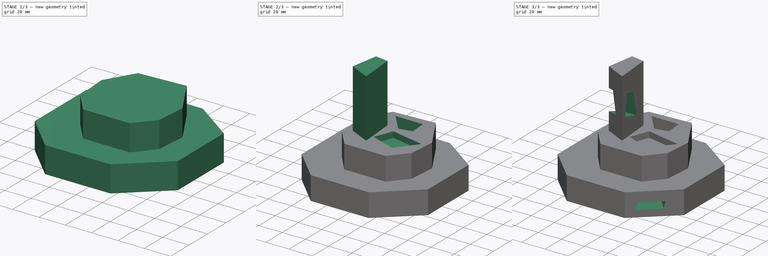
[diagram: build sequence overview — one tinted view per stage of 3, left to right]
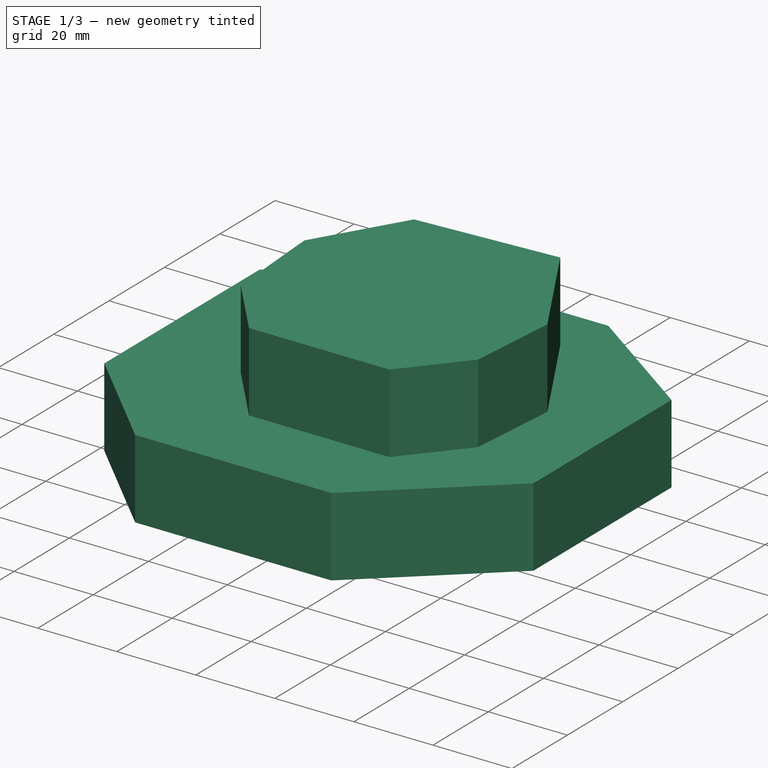
[diagram: stage 1 of 3 — iso view after this stage's code; geometry added in this stage tinted green]
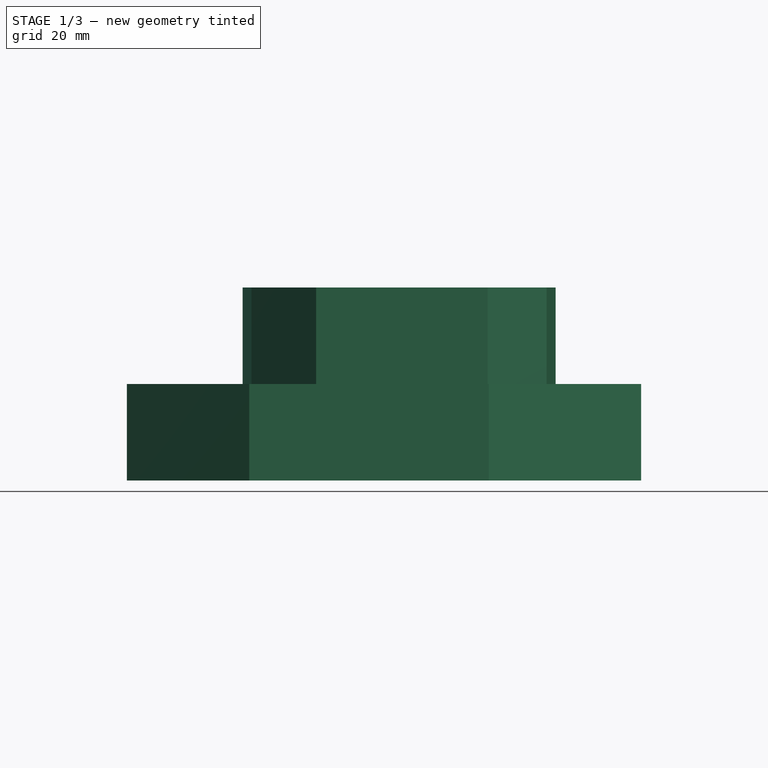
[diagram: stage 1 of 3 — front view after this stage's code; geometry added in this stage tinted green]
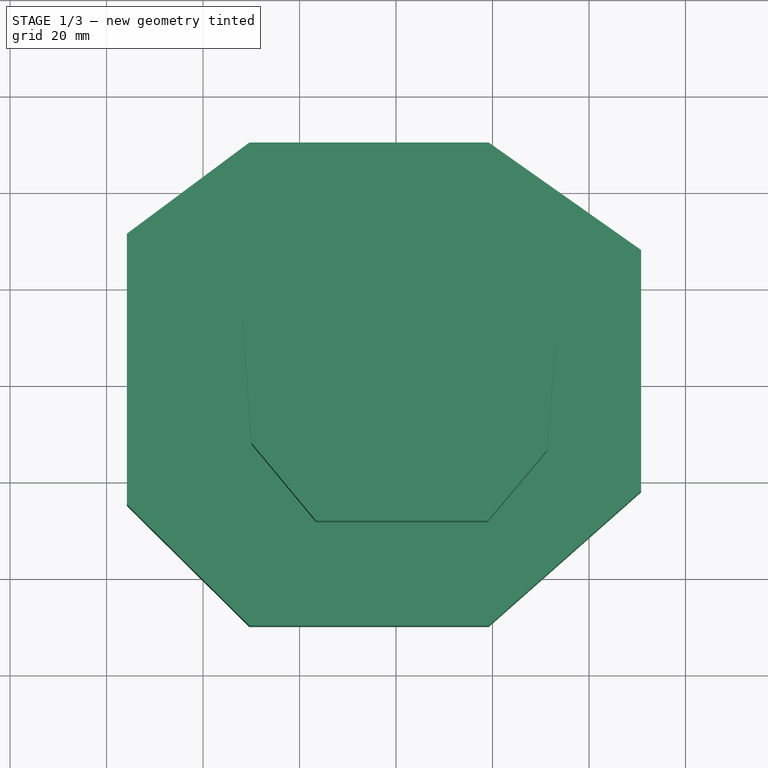
[diagram: stage 1 of 3 — top view after this stage's code; geometry added in this stage tinted green]
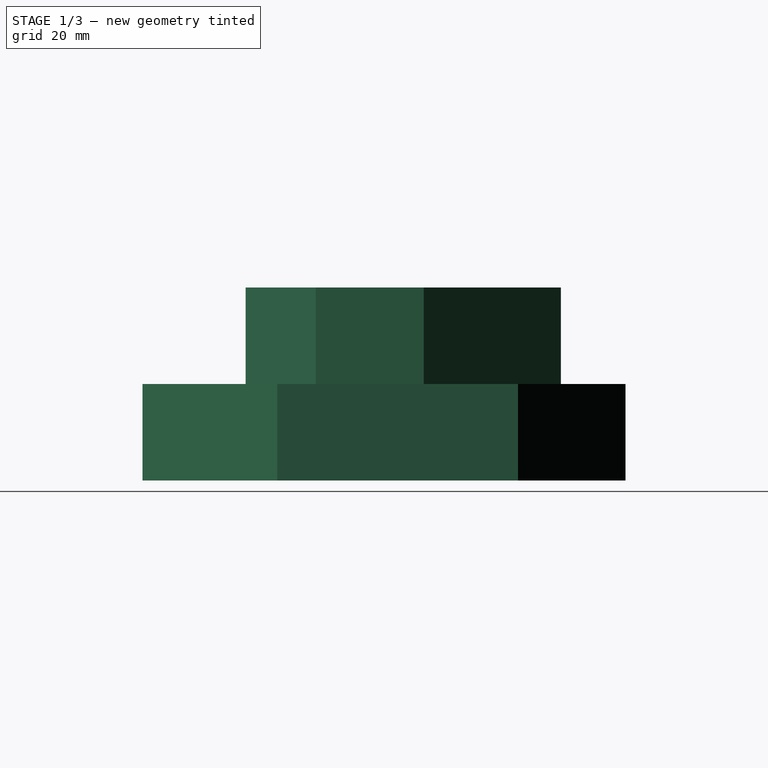
[diagram: stage 1 of 3 — right view after this stage's code; geometry added in this stage tinted green]
FCSTD DOCUMENT  (FreeCAD 0.21R33694 (Git))
Label: OJT1_T017_Tutorial
License: All rights reserved
LicenseURL: https://en.wikipedia.org/wiki/All_rights_reserved
objects: Sketcher::SketchObject×7, PartDesign::Pocket×4, PartDesign::Pad×3, PartDesign::Body×1
note: 22 computed .brp shape members not serialized (recipe doc carries the construction recipe); baked Part::Feature solids carry a one-line shape summary decoded from their .brp

FEATURE [Sketcher::SketchObject] Sketch
  FullyConstrained = false
  MapMode = 5
  Support = -> [XY_Plane]
  sketch-geometry (8):
    g0: LineSegment StartX=-30.4135 StartY=30.1897 StartZ=0 EndX=19.22 EndY=30.1897 EndZ=0
    g1: LineSegment StartX=19.22 StartY=30.1897 StartZ=0 EndX=50.8049 EndY=7.91106 EndZ=0
    g2: LineSegment StartX=50.8049 StartY=7.91106 StartZ=0 EndX=50.8049 EndY=-42.0044 EndZ=0
    g3: LineSegment StartX=50.8049 StartY=-42.0044 StartZ=0 EndX=19.22 EndY=-69.9233 EndZ=0
    g4: LineSegment StartX=19.22 StartY=-69.9233 StartZ=0 EndX=-30.4135 EndY=-69.9233 EndZ=0
    g5: LineSegment StartX=-30.4135 StartY=-69.9233 StartZ=0 EndX=-55.7943 EndY=-44.8245 EndZ=0
    g6: LineSegment StartX=-55.7943 StartY=-44.8245 StartZ=0 EndX=-55.7943 EndY=11.2952 EndZ=0
    g7: LineSegment StartX=-55.7943 StartY=11.2952 StartZ=0 EndX=-30.4135 EndY=30.1897 EndZ=0
  constraints (12):
    c: Horizontal(g0)
    c: Coincident(g0,g1)
    c: Coincident(g1,g2)
    c: Vertical(g2)
    c: Coincident(g2,g3)
    c: Coincident(g3,g4)
    c: Horizontal(g4)
    c: Coincident(g4,g5)
    c: Coincident(g5,g6)
    c: Vertical(g6)
    c: Coincident(g6,g7)
    c: Coincident(g7,g0)
FEATURE [PartDesign::Pad] Pad
  Direction = (0,0,1)
  Length = 20
  Length2 = 10
  Profile = -> Sketch
  ReferenceAxis = -> Sketch [N_Axis]
  Type = 0
FEATURE [Sketcher::SketchObject] Sketch001
  FullyConstrained = false
  MapMode = 5
  Placement = pos=(0,0,20) rot=(0,0,1;0rad)
  Support = -> [Pad]
  sketch-geometry (8):
    g0: LineSegment StartX=-19.1113 StartY=14.7062 StartZ=0 EndX=16.4456 EndY=16.7842 EndZ=0
    g1: LineSegment StartX=16.4456 StartY=16.7842 StartZ=0 EndX=33.0697 EndY=-11.6152 EndZ=0
    g2: LineSegment StartX=33.0697 StartY=-11.6152 StartZ=0 EndX=31.2226 EndY=-34.0114 EndZ=0
    g3: LineSegment StartX=31.2226 StartY=-34.0114 StartZ=0 EndX=18.9854 EndY=-48.5574 EndZ=0
    g4: LineSegment StartX=18.9854 StartY=-48.5574 StartZ=0 EndX=-16.5715 EndY=-48.5574 EndZ=0
    g5: LineSegment StartX=-16.5715 StartY=-48.5574 StartZ=0 EndX=-29.963 EndY=-32.3952 EndZ=0
    g6: LineSegment StartX=-29.963 StartY=-32.3952 StartZ=0 EndX=-31.8101 EndY=-6.76649 EndZ=0
    g7: LineSegment StartX=-31.8101 StartY=-6.76649 StartZ=0 EndX=-19.1113 EndY=14.7062 EndZ=0
  constraints (9):
    c: Coincident(g0,g1)
    c: Coincident(g1,g2)
    c: Coincident(g2,g3)
    c: Coincident(g3,g4)
    c: Horizontal(g4)
    c: Coincident(g4,g5)
    c: Coincident(g5,g6)
    c: Coincident(g6,g7)
    c: Coincident(g7,g0)
FEATURE [PartDesign::Pad] Pad001
  BaseFeature = -> Pad
  Direction = (0,0,1)
  Length = 20
  Length2 = 10
  Profile = -> Sketch001
  ReferenceAxis = -> Sketch001 [N_Axis]
  Type = 0
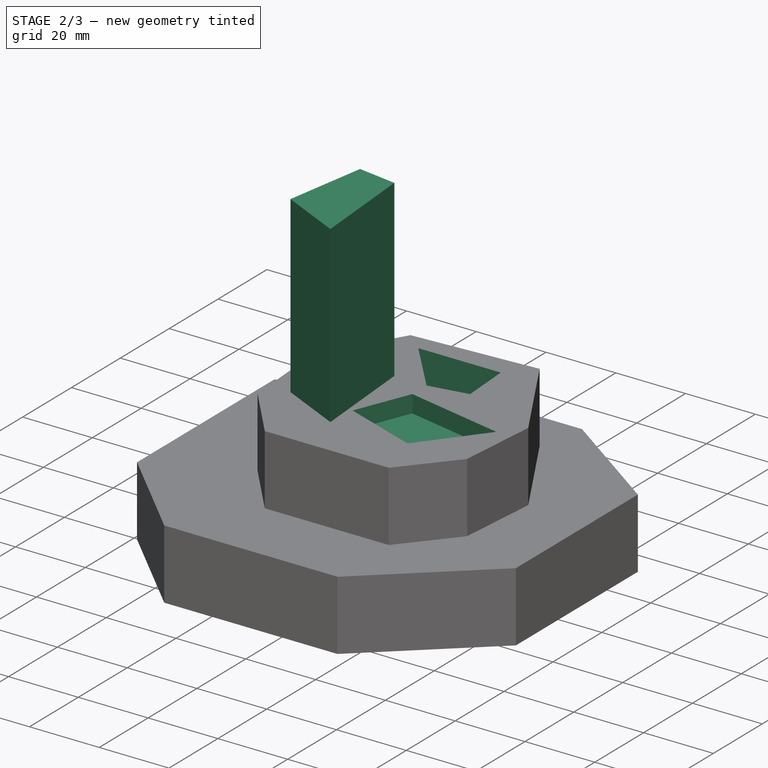
[diagram: stage 2 of 3 — iso view after this stage's code; geometry added in this stage tinted green]
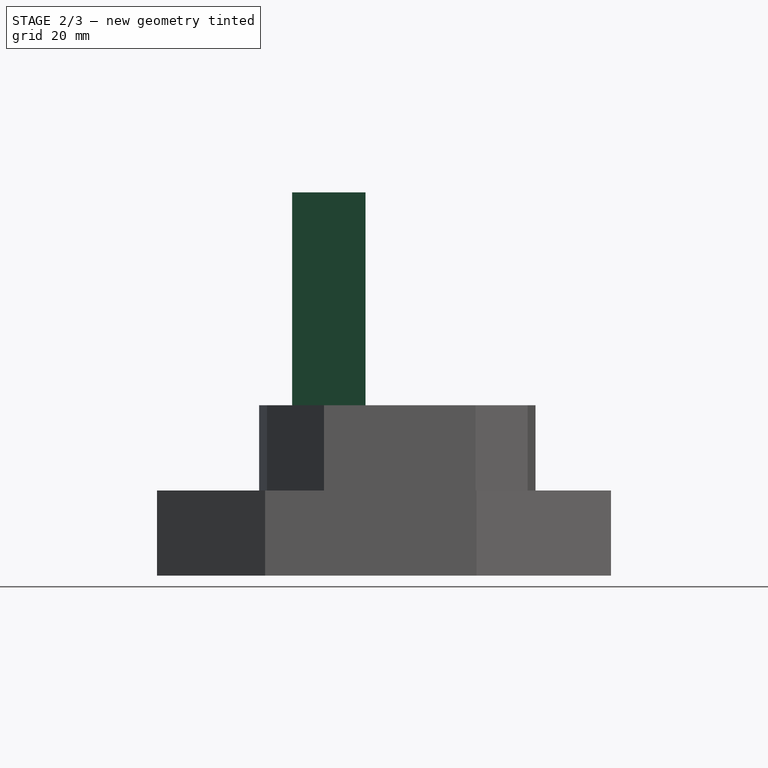
[diagram: stage 2 of 3 — front view after this stage's code; geometry added in this stage tinted green]
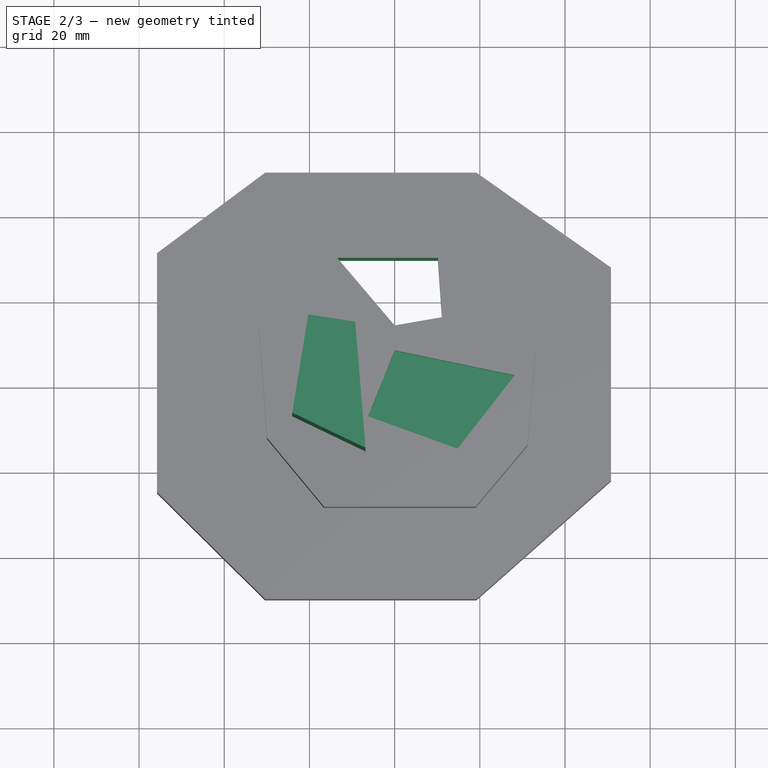
[diagram: stage 2 of 3 — top view after this stage's code; geometry added in this stage tinted green]
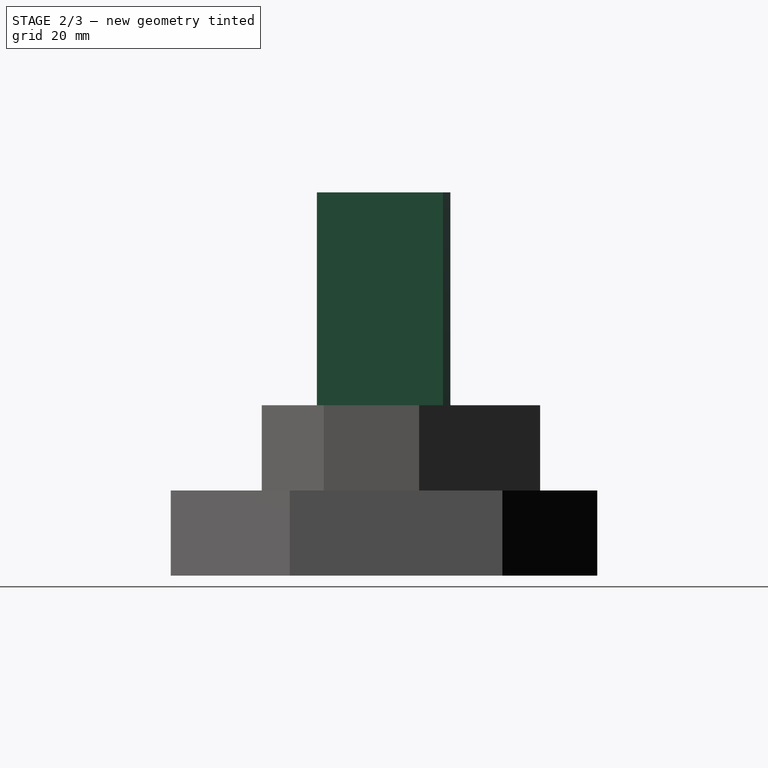
[diagram: stage 2 of 3 — right view after this stage's code; geometry added in this stage tinted green]
FEATURE [Sketcher::SketchObject] Sketch002
  FullyConstrained = false
  MapMode = 5
  Placement = pos=(0,0,40) rot=(0,0,1;0rad)
  Support = -> [Pad001]
  sketch-geometry (4):
    g0: LineSegment StartX=-20.2631 StartY=-4.2841 StartZ=0 EndX=-9.24087 EndY=-6.00633 EndZ=0
    g1: LineSegment StartX=-9.24087 StartY=-6.00633 StartZ=0 EndX=-6.82976 EndY=-35.6287 EndZ=0
    g2: LineSegment StartX=-6.82976 StartY=-35.6287 StartZ=0 EndX=-24.0521 EndY=-27.362 EndZ=0
    g3: LineSegment StartX=-24.0521 StartY=-27.362 StartZ=0 EndX=-20.2631 EndY=-4.2841 EndZ=0
  constraints (4):
    c: Coincident(g0,g1)
    c: Coincident(g1,g2)
    c: Coincident(g2,g3)
    c: Coincident(g3,g0)
FEATURE [PartDesign::Pad] Pad002
  BaseFeature = -> Pad001
  Direction = (0,0,1)
  Length = 50
  Length2 = 10
  Profile = -> Sketch002
  ReferenceAxis = -> Sketch002 [N_Axis]
  Type = 0
FEATURE [Sketcher::SketchObject] Sketch003
  FullyConstrained = false
  MapMode = 5
  Placement = pos=(0,0,40) rot=(0,0,1;0rad)
  Support = -> [Pad002]
  sketch-geometry (4):
    g0: LineSegment StartX=0 StartY=-11.8676 StartZ=0 EndX=28.2036 EndY=-17.7232 EndZ=0
    g1: LineSegment StartX=28.2036 StartY=-17.7232 StartZ=0 EndX=14.7702 EndY=-34.9455 EndZ=0
    g2: LineSegment StartX=14.7702 StartY=-34.9455 StartZ=0 EndX=-6.24095 EndY=-27.3676 EndZ=0
    g3: LineSegment StartX=-6.24095 StartY=-27.3676 StartZ=0 EndX=0 EndY=-11.8676 EndZ=0
  constraints (5):
    c: PointOnObject(g0,g-2)
    c: Coincident(g0,g1)
    c: Coincident(g1,g2)
    c: Coincident(g2,g3)
    c: Coincident(g3,g0)
FEATURE [PartDesign::Pocket] Pocket
  BaseFeature = -> Pad002
  Direction = (0,0,-1)
  Length = 5
  Length2 = 5
  Profile = -> Sketch003
  ReferenceAxis = -> Sketch003 [N_Axis]
  Type = 0
FEATURE [Sketcher::SketchObject] Sketch004
  FullyConstrained = false
  MapMode = 5
  Placement = pos=(0,0,40) rot=(0,0,1;0rad)
  Support = -> [Pocket]
  sketch-geometry (4):
    g0: LineSegment StartX=-13.4609 StartY=9.83512 StartZ=0 EndX=10.1651 EndY=9.83512 EndZ=0
    g1: LineSegment StartX=10.1651 StartY=9.83512 StartZ=0 EndX=11.136 EndY=-4.0816 EndZ=0
    g2: LineSegment StartX=11.136 StartY=-4.0816 StartZ=0 EndX=0 EndY=-6.02346 EndZ=0
    g3: LineSegment StartX=0 StartY=-6.02346 StartZ=0 EndX=-13.4609 EndY=9.83512 EndZ=0
  constraints (5):
    c: Horizontal(g0)
    c: Coincident(g0,g1)
    c: Coincident(g1,g2)
    c: Coincident(g2,g3)
    c: Coincident(g3,g0)
FEATURE [PartDesign::Pocket] Pocket001
  BaseFeature = -> Pocket
  Direction = (0,0,-1)
  Length = 5
  Length2 = 5
  Profile = -> Sketch004
  ReferenceAxis = -> Sketch004 [N_Axis]
  Type = 1
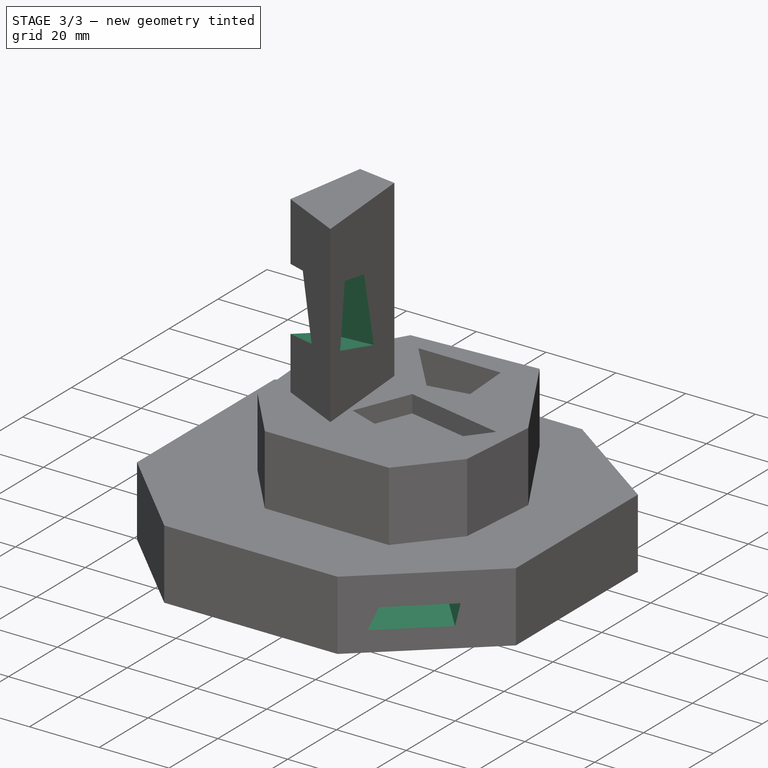
[diagram: stage 3 of 3 — iso view after this stage's code; geometry added in this stage tinted green]
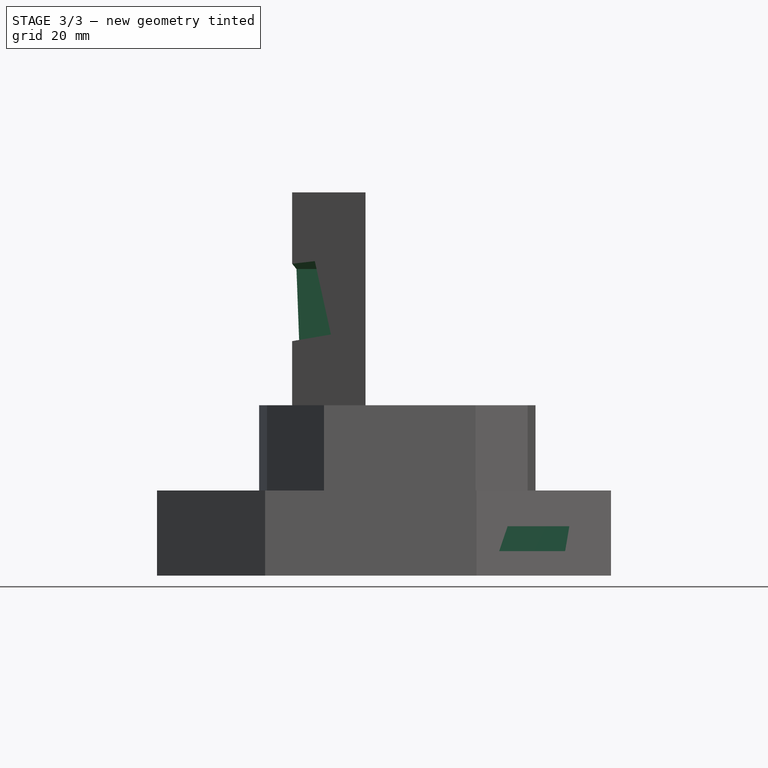
[diagram: stage 3 of 3 — front view after this stage's code; geometry added in this stage tinted green]
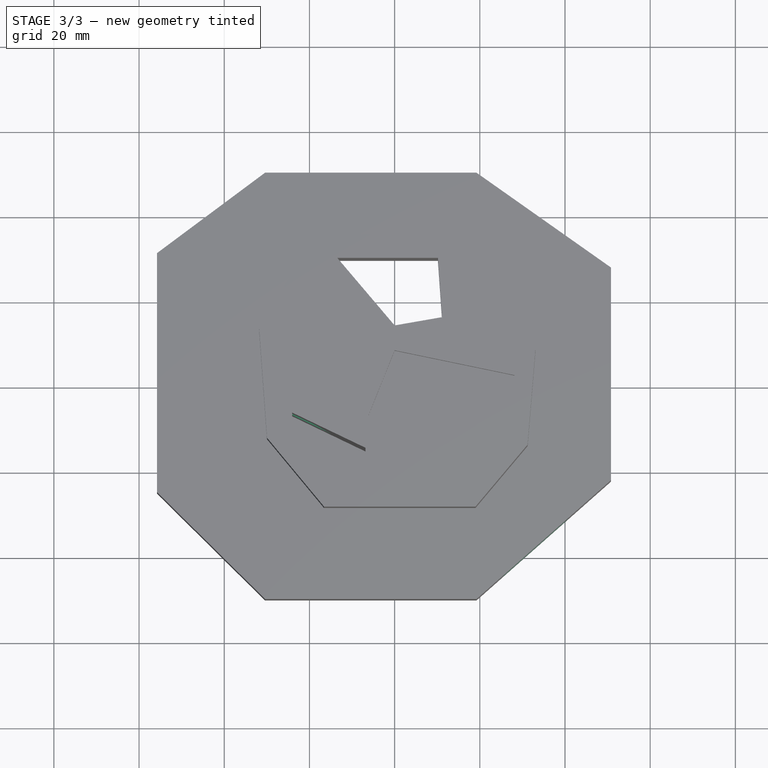
[diagram: stage 3 of 3 — top view after this stage's code; geometry added in this stage tinted green]
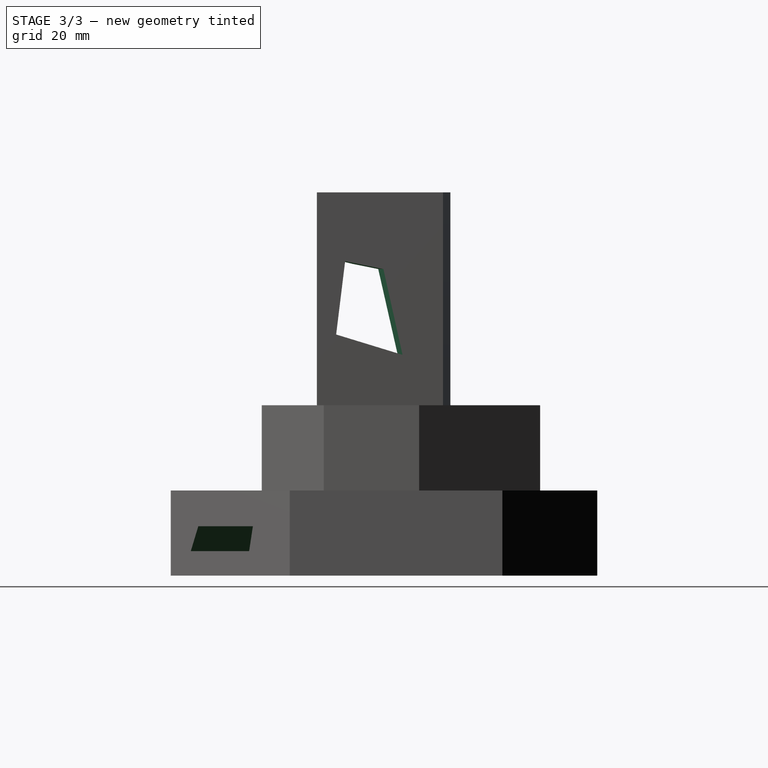
[diagram: stage 3 of 3 — right view after this stage's code; geometry added in this stage tinted green]
FEATURE [Sketcher::SketchObject] Sketch005
  FullyConstrained = false
  MapMode = 5
  Placement = pos=(-9.66572,-0.786742,0) rot=(0.546101,0.592357,0.592357;2.1419rad)
  Support = -> [Pocket001]
  sketch-geometry (4):
    g0: LineSegment StartX=-28.2936 StartY=73.8444 StartZ=0 EndX=-19.2844 EndY=71.9896 EndZ=0
    g1: LineSegment StartX=-19.2844 StartY=71.9896 StartZ=0 EndX=-14.7798 EndY=51.8513 EndZ=0
    g2: LineSegment StartX=-14.7798 StartY=51.8513 StartZ=0 EndX=-30.4135 EndY=56.6208 EndZ=0
    g3: LineSegment StartX=-30.4135 StartY=56.6208 StartZ=0 EndX=-28.2936 EndY=73.8444 EndZ=0
  constraints (4):
    c: Coincident(g0,g1)
    c: Coincident(g1,g2)
    c: Coincident(g2,g3)
    c: Coincident(g3,g0)
FEATURE [PartDesign::Pocket] Pocket002
  BaseFeature = -> Pocket001
  Direction = (-0.996704,-0.0811267,1e-16)
  Length = 5
  Length2 = 5
  Profile = -> Sketch005
  ReferenceAxis = -> Sketch005 [N_Axis]
  Type = 1
FEATURE [Sketcher::SketchObject] Sketch006
  FullyConstrained = false
  MapMode = 5
  Placement = pos=(43.1275,-48.7907,0) rot=(0.881582,0.333776,0.333776;1.6965rad)
  Support = -> [Pocket002]
  sketch-geometry (4):
    g0: LineSegment StartX=-22.1521 StartY=11.6077 StartZ=0 EndX=-2.80872 EndY=11.6077 EndZ=0
    g1: LineSegment StartX=-2.80872 StartY=11.6077 StartZ=0 EndX=-4.13362 EndY=5.77818 EndZ=0
    g2: LineSegment StartX=-4.13362 StartY=5.77818 StartZ=0 EndX=-24.8019 EndY=5.77818 EndZ=0
    g3: LineSegment StartX=-24.8019 StartY=5.77818 StartZ=0 EndX=-22.1521 EndY=11.6077 EndZ=0
  constraints (6):
    c: Horizontal(g0)
    c: Coincident(g0,g1)
    c: Coincident(g1,g2)
    c: Horizontal(g2)
    c: Coincident(g2,g3)
    c: Coincident(g3,g0)
FEATURE [PartDesign::Pocket] Pocket003
  BaseFeature = -> Pocket002
  Direction = (-0.662285,0.749252,0)
  Length = 5
  Length2 = 5
  Profile = -> Sketch006
  ReferenceAxis = -> Sketch006 [N_Axis]
  Type = 1
FEATURE [PartDesign::Body] Body
  Group = -> [Sketch,Pad,Sketch001,Pad001,Sketch002,Pad002,Sketch003,Pocket,Sketch004,Pocket001,Sketch005,Pocket002,Sketch006,Pocket003]
  Origin = -> Origin
  Tip = -> Pocket003
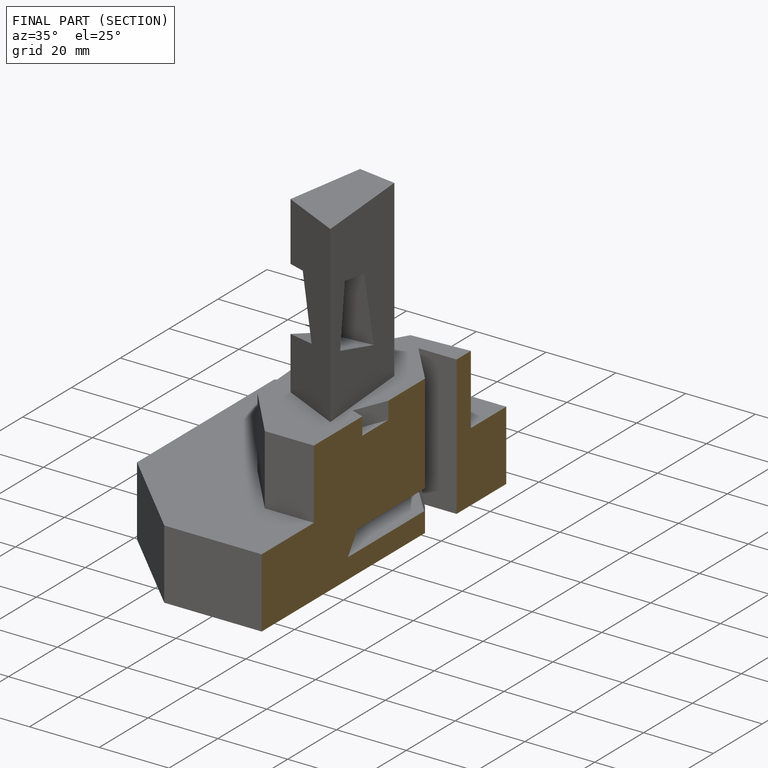
[diagram: finished part — half-section view (interior)]
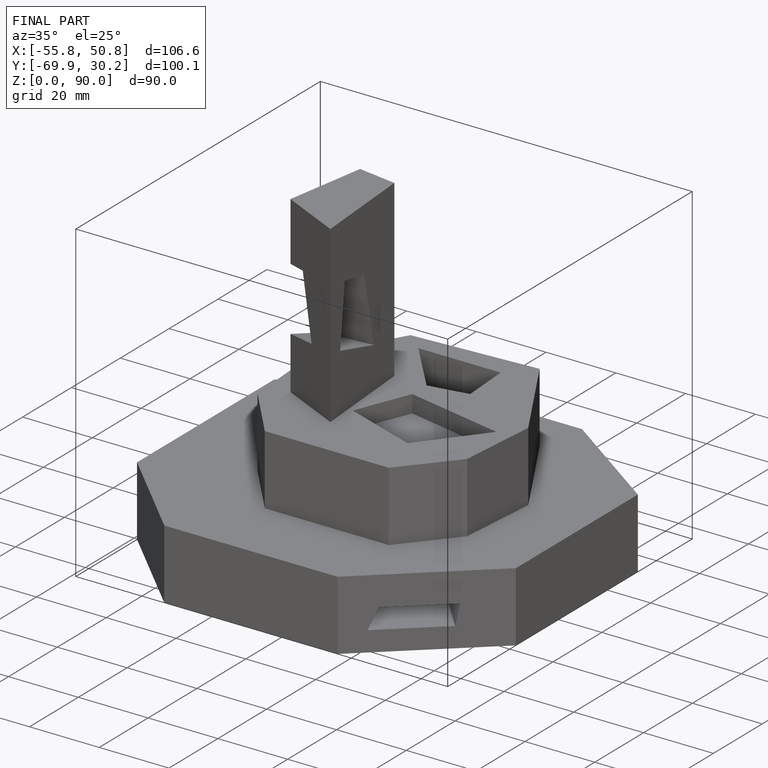
[diagram: finished part — iso view with bounding-box wireframe]
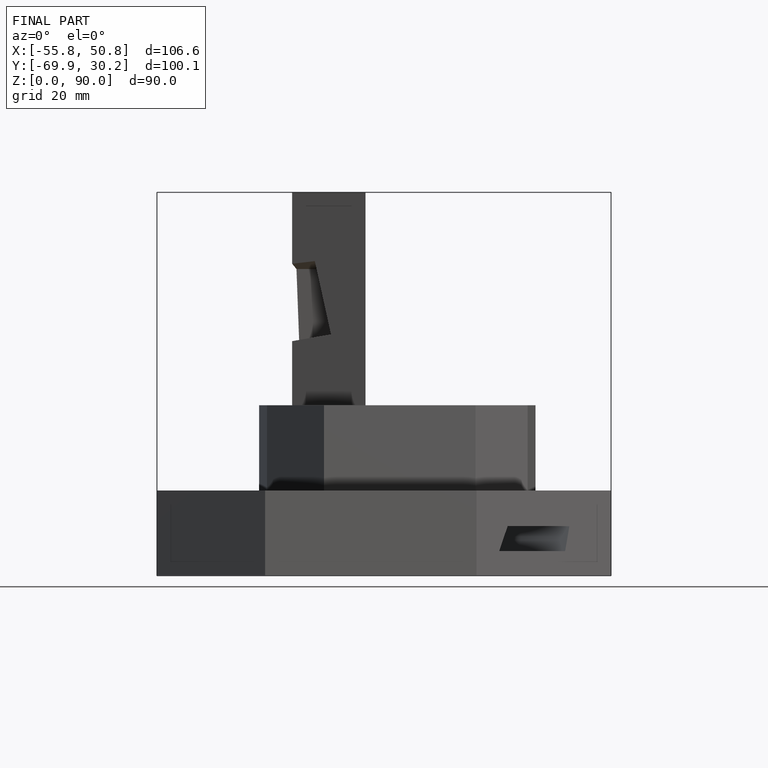
[diagram: finished part — front view with bounding-box wireframe]
